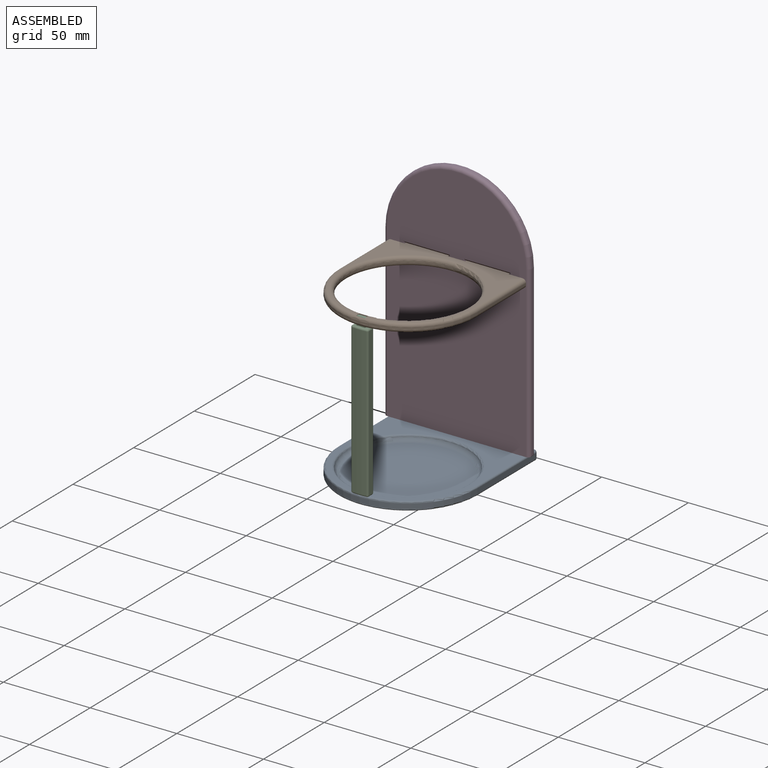
[diagram: assembled view]
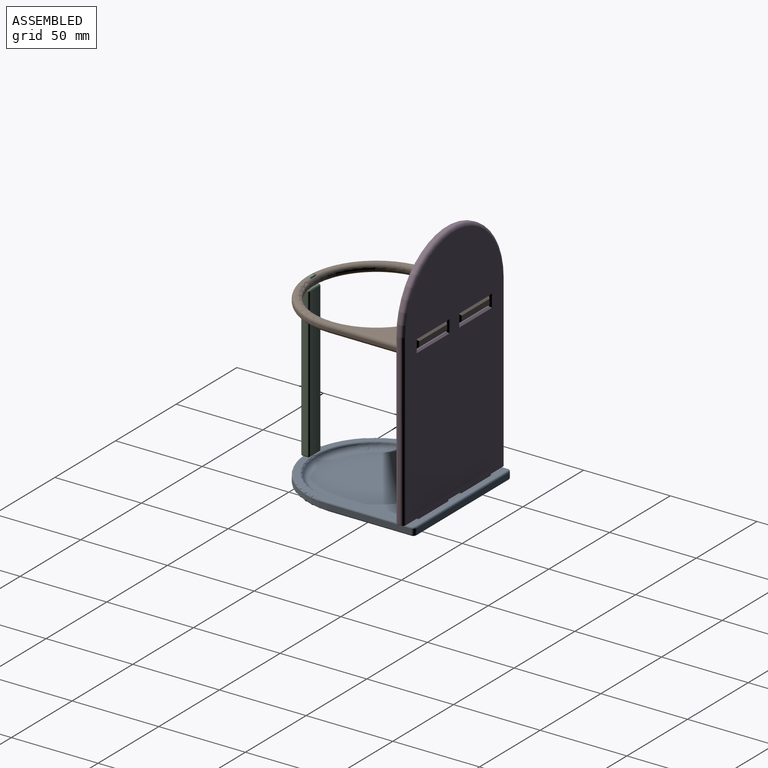
[diagram: assembled view, second angle]
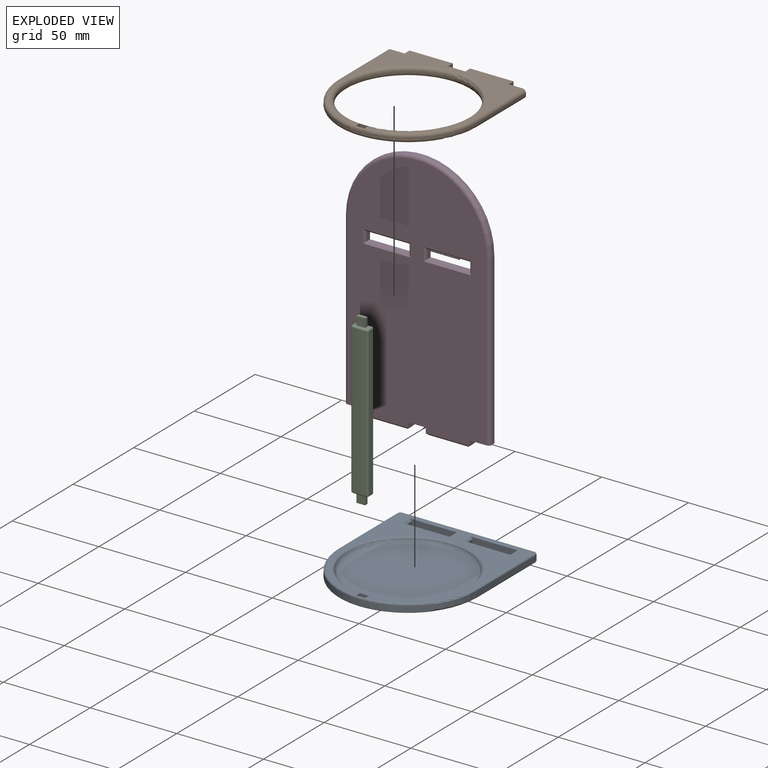
[diagram: exploded view]
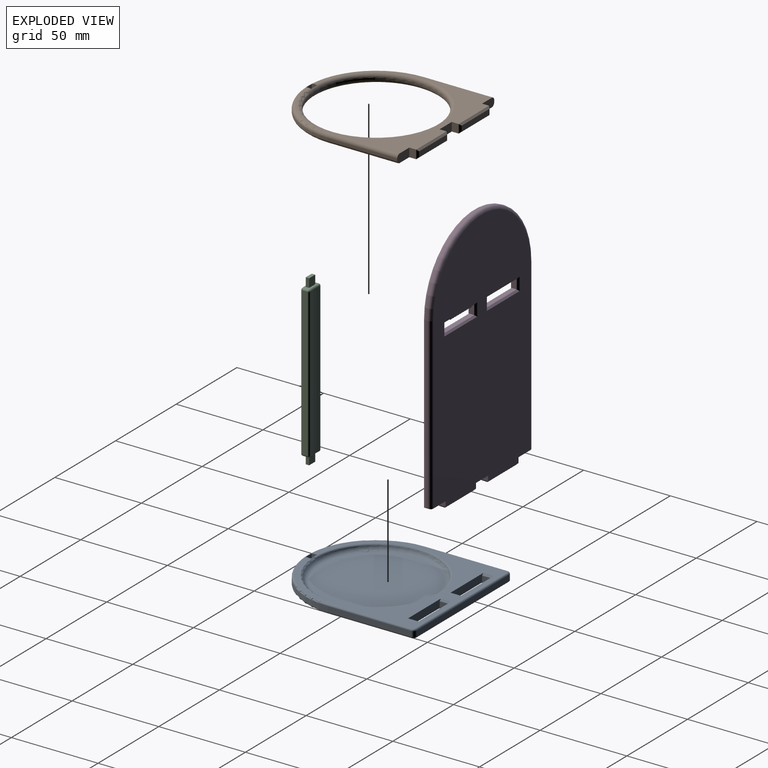
[diagram: exploded view, second angle]
ASSEMBLY  parts=4 mates=9
PART A: 47 faces, bbox 86.6x93.5x5 mm
  f0: plane 87.92x78mm, normal (0,0,1), area 1829.1mm2, adj f7,f9,f11,f13,f15,f16,f17,f28
  f1: plane 87.92x78mm, normal (0,0,-1), area 5831.9mm2, adj f15,f16,f17,f22,f23,f24,f25,f26
  f2: plane 48x3mm, normal (-1,0,0), area 144mm2, adj f3,f21,f23,f32
  f3: cylinder r=40mm len=80mm, axis (0,0,-1), area 377mm2, adj f2,f4,f22,f30
  f4: plane 48x3mm, normal (1,0,0), area 144mm2, adj f3,f20,f24,f28
  f5: plane 76x3mm, normal (0,1,0), area 228mm2, adj f20,f21,f27,f31
  f6: plane 64x64mm, normal (0,0,1), area 3217mm2, adj f19
  f7: plane 27x4.5mm, normal (0,1,0), area 113.5mm2, adj f0,f8,f10,f39,f44,f45
  f8: plane 6x3.5mm, normal (1,0,0), area 21mm2, adj f7,f9,f38,f44
  f9: plane 27x4.5mm, normal (0,-1,0), area 113.5mm2, adj f0,f8,f10,f40,f44,f45
  f10: plane 6x3.5mm, normal (-1,0,0), area 21mm2, adj f7,f9,f41,f45
  f11: plane 27x4.5mm, normal (0,1,0), area 113.5mm2, adj f0,f12,f14,f35,f42,f43
  f12: plane 6x3.5mm, normal (1,0,0), area 21mm2, adj f11,f13,f37,f42
  f13: plane 27x4.5mm, normal (0,-1,0), area 113.5mm2, adj f0,f12,f14,f36,f42,f43
  f14: plane 6x3.5mm, normal (-1,0,0), area 21mm2, adj f11,f13,f34,f43
  f15: plane 5x3mm, normal (-1,0,0), area 15mm2, adj f0,f1,f16,f18,f22,f30
  f16: plane 5x5mm, normal (0,-1,0), area 25mm2, adj f0,f1,f15,f17
  f17: plane 5x3mm, normal (1,0,0), area 15mm2, adj f0,f1,f16,f18,f22,f30
  f18: plane 5x5mm, normal (0,1,0), area 25mm2, adj f15,f17,f22,f30
  f19: torus R=32mm, axis (0,0,1), area 837.5mm2, adj f6,f46
  f20: cylinder r=2mm len=3mm, axis (0,0,1), area 9.4mm2, adj f4,f5,f26,f29
  f21: cylinder r=2mm len=3mm, axis (0,0,-1), area 9.4mm2, adj f2,f5,f25,f33
  f22: torus R=39mm, axis (0,0,1), area 195.5mm2, adj f1,f3,f15,f17,f18,f23,f24
  f23: cylinder r=1mm len=48mm, axis (0,-1,0), area 75.4mm2, adj f1,f2,f22,f25
  f24: cylinder r=1mm len=48mm, axis (0,1,0), area 75.4mm2, adj f1,f4,f22,f26
  f25: torus R=1mm, axis (0,0,1), area 4mm2, adj f1,f21,f23,f27
  f26: torus R=1mm, axis (0,0,1), area 4mm2, adj f1,f20,f24,f27
  f27: cylinder r=1mm len=76mm, axis (-1,0,0), area 119.4mm2, adj f1,f5,f25,f26
  f28: cylinder r=1mm len=48mm, axis (0,-1,0), area 75.4mm2, adj f0,f4,f29,f30
  f29: torus R=1mm, axis (0,0,1), area 4mm2, adj f0,f20,f28,f31
  f30: torus R=39mm, axis (0,0,1), area 195.5mm2, adj f0,f3,f15,f17,f18,f28,f32
  f31: cylinder r=1mm len=76mm, axis (1,0,0), area 119.4mm2, adj f0,f5,f29,f33
  f32: cylinder r=1mm len=48mm, axis (0,1,0), area 75.4mm2, adj f0,f2,f30,f33
  f33: torus R=1mm, axis (0,0,1), area 4mm2, adj f0,f21,f31,f32
  f34: plane 7x0.5mm, normal (-0.71,0,-0.71), area 4.6mm2, adj f1,f14,f35,f36
  f35: plane 26x0.5mm, normal (0,0.71,-0.71), area 18mm2, adj f1,f11,f34,f37
  f36: plane 26x0.5mm, normal (0,-0.71,-0.71), area 18mm2, adj f1,f13,f34,f37
  f37: plane 7x0.5mm, normal (0.71,0,-0.71), area 4.6mm2, adj f1,f12,f35,f36
  f38: plane 7x0.5mm, normal (0.71,0,-0.71), area 4.6mm2, adj f1,f8,f39,f40
  f39: plane 26x0.5mm, normal (0,0.71,-0.71), area 18mm2, adj f1,f7,f38,f41
  f40: plane 26x0.5mm, normal (0,-0.71,-0.71), area 18mm2, adj f1,f9,f38,f41
  f41: plane 7x0.5mm, normal (-0.71,0,-0.71), area 4.6mm2, adj f1,f10,f39,f40
  f42: plane 6x1mm, normal (0.71,0,0.71), area 8.5mm2, adj f0,f11,f12,f13
  f43: plane 6x1mm, normal (-0.71,0,0.71), area 8.5mm2, adj f0,f11,f13,f14
  f44: plane 6x1mm, normal (0.71,0,0.71), area 8.5mm2, adj f0,f7,f8,f9
  f45: plane 6x1mm, normal (-0.71,0,0.71), area 8.5mm2, adj f0,f7,f9,f10
  f46: torus R=35.87mm, axis (0,0,1), area 292.4mm2, adj f0,f19
PART B: 35 faces, bbox 86.6x88.3x5 mm
  f0: plane 10x5mm, normal (0,1,0), area 50mm2, adj f7,f8,f9,f13
  f1: plane 10x5mm, normal (0,1,0), area 48.3mm2, adj f3,f7,f8,f11,f29,f32
  f2: plane 10x5mm, normal (0,1,0), area 48.3mm2, adj f5,f7,f8,f14,f27,f30
  f3: plane 40x1mm, normal (-1,0,0), area 40mm2, adj f1,f4,f29,f32
  f4: cylinder r=40mm len=80mm, axis (0,0,-1), area 125.7mm2, adj f3,f5,f28,f31
  f5: plane 40x1mm, normal (1,0,0), area 40mm2, adj f2,f4,f27,f30
  f6: cylinder r=35mm len=70mm, axis (0,0,-1), area 219.9mm2, adj f33,f34
  f7: plane 81.92x76mm, normal (0,0,1), area 1202.4mm2, adj f0,f1,f2,f9,f11,f13,f14,f15
  f8: plane 81.92x76mm, normal (0,0,-1), area 1202.4mm2, adj f0,f1,f2,f9,f11,f13,f14,f15
  f9: plane 5x4mm, normal (1,0,0), area 20mm2, adj f0,f7,f8,f25
  f10: plane 23x3mm, normal (0,1,0), area 69mm2, adj f23,f24,f25,f26
  f11: plane 5x4mm, normal (-1,0,0), area 20mm2, adj f1,f7,f8,f24
  f12: plane 23x3mm, normal (0,1,0), area 69mm2, adj f19,f20,f21,f22
  f13: plane 5x4mm, normal (-1,0,0), area 20mm2, adj f0,f7,f8,f21
  f14: plane 5x4mm, normal (1,0,0), area 20mm2, adj f2,f7,f8,f20
  f15: plane 5.01x3.01mm, normal (-1,0,0), area 14.6mm2, adj f7,f8,f16,f18,f28,f31,f33,f34
  f16: plane 5x4.56mm, normal (0,-1,0), area 22.5mm2, adj f15,f17,f33,f34
  f17: plane 5.01x3.01mm, normal (1,0,0), area 14.6mm2, adj f7,f8,f16,f18,f28,f31,f33,f34
  f18: plane 5x4.47mm, normal (0,1,0), area 22.2mm2, adj f15,f17,f28,f31
  f19: plane 25x1mm, normal (0,0.71,-0.71), area 33.9mm2, adj f8,f12,f20,f21
  f20: plane 5x1mm, normal (0.71,0.71,0), area 5.7mm2, adj f12,f14,f19,f22
  f21: plane 5x1mm, normal (-0.71,0.71,0), area 5.7mm2, adj f12,f13,f19,f22
  f22: plane 25x1mm, normal (0,0.71,0.71), area 33.9mm2, adj f7,f12,f20,f21
  f23: plane 25x1mm, normal (0,0.71,0.71), area 33.9mm2, adj f7,f10,f24,f25
  f24: plane 5x1mm, normal (-0.71,0.71,0), area 5.7mm2, adj f10,f11,f23,f26
  f25: plane 5x1mm, normal (0.71,0.71,0), area 5.7mm2, adj f9,f10,f23,f26
  f26: plane 25x1mm, normal (0,0.71,-0.71), area 33.9mm2, adj f8,f10,f24,f25
  f27: cylinder r=2mm len=40mm, axis (0,-1,0), area 125.7mm2, adj f2,f5,f7,f28
  f28: torus R=38mm, axis (0,0,1), area 382.2mm2, adj f4,f7,f15,f17,f18,f27,f29
  f29: cylinder r=2mm len=40mm, axis (0,1,0), area 125.7mm2, adj f1,f3,f7,f28
  f30: cylinder r=2mm len=40mm, axis (0,1,0), area 125.7mm2, adj f2,f5,f8,f31
  f31: torus R=38mm, axis (0,0,1), area 382.2mm2, adj f4,f8,f15,f17,f18,f30,f32
  f32: cylinder r=2mm len=40mm, axis (0,-1,0), area 125.7mm2, adj f1,f3,f8,f31
  f33: torus R=37mm, axis (0,0,1), area 700.1mm2, adj f6,f8,f15,f16,f17
  f34: torus R=37mm, axis (0,0,1), area 700.1mm2, adj f6,f7,f15,f16,f17
PART C: 36 faces, bbox 10x5.4x97.5 mm
  f0: plane 8x3.22mm, normal (0,0,1), area 14mm2, adj f6,f7,f8,f9,f20,f23,f24,f27
  f1: plane 85.5x3.02mm, normal (-1,0,0), area 258mm2, adj f16,f19,f23,f31
  f2: cylinder r=40mm len=85.5mm, axis (0,0,-1), area 702.8mm2, adj f16,f17,f27,f28
  f3: plane 85.5x3.02mm, normal (1,0,0), area 258mm2, adj f17,f18,f24,f32
  f4: cylinder r=35mm len=85.5mm, axis (0,0,-1), area 666.4mm2, adj f18,f19,f20,f35
  f5: plane 8x3.22mm, normal (0,0,-1), area 14mm2, adj f11,f12,f13,f14,f28,f31,f32,f35
  f6: plane 5x2mm, normal (1,0,0), area 10mm2, adj f0,f7,f9,f10
  f7: plane 5x5mm, normal (0,1,0), area 25mm2, adj f0,f6,f8,f10
  f8: plane 5x2mm, normal (-1,0,0), area 10mm2, adj f0,f7,f9,f10
  f9: plane 5x5mm, normal (0,-1,0), area 25mm2, adj f0,f6,f8,f10
  f10: plane 5x2mm, normal (0,0,1), area 10mm2, adj f6,f7,f8,f9
  f11: plane 5x2mm, normal (1,0,0), area 10mm2, adj f5,f12,f14,f15
  f12: plane 5x5mm, normal (0,-1,0), area 25mm2, adj f5,f11,f13,f15
  f13: plane 5x2mm, normal (-1,0,0), area 10mm2, adj f5,f12,f14,f15
  f14: plane 5x5mm, normal (0,1,0), area 25mm2, adj f5,f11,f13,f15
  f15: plane 5x2mm, normal (0,0,-1), area 10mm2, adj f11,f12,f13,f14
  f16: cylinder r=1mm len=85.5mm, axis (0,0,-1), area 125.5mm2, adj f1,f2,f25,f29
  f17: cylinder r=1mm len=85.5mm, axis (0,0,-1), area 125.5mm2, adj f2,f3,f26,f30
  f18: cylinder r=1mm len=85.5mm, axis (0,0,-1), area 143.8mm2, adj f3,f4,f22,f34
  f19: cylinder r=1mm len=85.5mm, axis (0,0,-1), area 143.8mm2, adj f1,f4,f21,f33
  f20: torus R=36mm, axis (0,0,1), area 12.4mm2, adj f0,f4,f21,f22
  f21: sphere r=1mm, area 1.7mm2, adj f19,f20,f23
  f22: sphere r=1mm, area 1.7mm2, adj f18,f20,f24
  f23: cylinder r=1mm len=3.02mm, axis (0,1,0), area 4.7mm2, adj f0,f1,f21,f25
  f24: cylinder r=1mm len=3.02mm, axis (0,-1,0), area 4.7mm2, adj f0,f3,f22,f26
  f25: sphere r=1mm, area 1.5mm2, adj f16,f23,f27
  f26: sphere r=1mm, area 1.5mm2, adj f17,f24,f27
  f27: torus R=39mm, axis (0,0,1), area 12.8mm2, adj f0,f2,f25,f26
  f28: torus R=39mm, axis (0,0,1), area 12.8mm2, adj f2,f5,f29,f30
  f29: sphere r=1mm, area 1.5mm2, adj f16,f28,f31
  f30: sphere r=1mm, area 1.5mm2, adj f17,f28,f32
  f31: cylinder r=1mm len=3.02mm, axis (0,-1,0), area 4.7mm2, adj f1,f5,f29,f33
  f32: cylinder r=1mm len=3.02mm, axis (0,1,0), area 4.7mm2, adj f3,f5,f30,f34
  f33: sphere r=1mm, area 1.7mm2, adj f19,f31,f35
  f34: sphere r=1mm, area 1.7mm2, adj f18,f32,f35
  f35: torus R=36mm, axis (0,0,1), area 12.4mm2, adj f4,f5,f33,f34
PART D: 54 faces, bbox 90.9x5x147.5 mm
  f0: plane 10x5mm, normal (0,0,-1), area 50mm2, adj f2,f3,f18,f19
  f1: plane 11.5x5mm, normal (0,0,-1), area 56.9mm2, adj f2,f3,f16,f46,f48,f51
  f2: plane 141x80mm, normal (0,-1,0), area 10098.3mm2, adj f0,f1,f5,f16,f18,f19,f21,f27
  f3: plane 141x80mm, normal (0,1,0), area 10098.3mm2, adj f0,f1,f5,f16,f18,f19,f21,f26
  f4: plane 97.5x1mm, normal (-1,0,0), area 97.5mm2, adj f7,f46,f48,f51
  f5: plane 11.5x5mm, normal (0,0,-1), area 56.9mm2, adj f2,f3,f21,f47,f50,f53
  f6: plane 97.5x1mm, normal (1,0,0), area 97.5mm2, adj f7,f47,f50,f53
  f7: cylinder r=42mm len=84mm, axis (0,1,0), area 131.9mm2, adj f4,f6,f49,f52
  f8: plane 25x3mm, normal (0,0,-1), area 75mm2, adj f9,f11,f35,f41
  f9: plane 5.5x3mm, normal (1,0,0), area 16.5mm2, adj f8,f10,f34,f39
  f10: plane 25x3mm, normal (0,0,1), area 75mm2, adj f9,f11,f36,f38
  f11: plane 5.5x3mm, normal (-1,0,0), area 16.5mm2, adj f8,f10,f37,f40
  f12: plane 5.5x3mm, normal (-1,0,0), area 16.5mm2, adj f13,f15,f33,f42
  f13: plane 25x3mm, normal (0,0,-1), area 75mm2, adj f12,f14,f31,f43
  f14: plane 5.5x3mm, normal (1,0,0), area 16.5mm2, adj f13,f15,f30,f45
  f15: plane 25x3mm, normal (0,0,1), area 75mm2, adj f12,f14,f32,f44
  f16: plane 5x3mm, normal (-1,0,0), area 15mm2, adj f1,f2,f3,f24
  f17: plane 23x3mm, normal (0,0,-1), area 69mm2, adj f24,f25,f26,f27
  f18: plane 5x3mm, normal (1,0,0), area 15mm2, adj f0,f2,f3,f25
  f19: plane 5x3mm, normal (-1,0,0), area 15mm2, adj f0,f2,f3,f23
  f20: plane 23x3mm, normal (0,0,-1), area 69mm2, adj f22,f23,f28,f29
  f21: plane 5x3mm, normal (1,0,0), area 15mm2, adj f2,f3,f5,f22
  f22: plane 5x1mm, normal (0.71,0,-0.71), area 5.7mm2, adj f20,f21,f28,f29
  f23: plane 5x1mm, normal (-0.71,0,-0.71), area 5.7mm2, adj f19,f20,f28,f29
  f24: plane 5x1mm, normal (-0.71,0,-0.71), area 5.7mm2, adj f16,f17,f26,f27
  f25: plane 5x1mm, normal (0.71,0,-0.71), area 5.7mm2, adj f17,f18,f26,f27
  f26: plane 25x1mm, normal (0,0.71,-0.71), area 33.9mm2, adj f3,f17,f24,f25
  f27: plane 25x1mm, normal (0,-0.71,-0.71), area 33.9mm2, adj f2,f17,f24,f25
  f28: plane 25x1mm, normal (0,0.71,-0.71), area 33.9mm2, adj f3,f20,f22,f23
  f29: plane 25x1mm, normal (0,-0.71,-0.71), area 33.9mm2, adj f2,f20,f22,f23
  f30: plane 7.5x1mm, normal (0.71,-0.71,0), area 9.2mm2, adj f2,f14,f31,f32
  f31: plane 27x1mm, normal (0,-0.71,-0.71), area 36.8mm2, adj f2,f13,f30,f33
  f32: plane 27x1mm, normal (0,-0.71,0.71), area 36.8mm2, adj f2,f15,f30,f33
  f33: plane 7.5x1mm, normal (-0.71,-0.71,0), area 9.2mm2, adj f2,f12,f31,f32
  f34: plane 7.5x1mm, normal (0.71,-0.71,0), area 9.2mm2, adj f2,f9,f35,f36
  f35: plane 27x1mm, normal (0,-0.71,-0.71), area 36.8mm2, adj f2,f8,f34,f37
  f36: plane 27x1mm, normal (0,-0.71,0.71), area 36.8mm2, adj f2,f10,f34,f37
  f37: plane 7.5x1mm, normal (-0.71,-0.71,0), area 9.2mm2, adj f2,f11,f35,f36
  f38: plane 27x1mm, normal (0,0.71,0.71), area 36.8mm2, adj f3,f10,f39,f40
  f39: plane 7.5x1mm, normal (0.71,0.71,0), area 9.2mm2, adj f3,f9,f38,f41
  f40: plane 7.5x1mm, normal (-0.71,0.71,0), area 9.2mm2, adj f3,f11,f38,f41
  f41: plane 27x1mm, normal (0,0.71,-0.71), area 36.8mm2, adj f3,f8,f39,f40
  f42: plane 7.5x1mm, normal (-0.71,0.71,0), area 9.2mm2, adj f3,f12,f43,f44
  f43: plane 27x1mm, normal (0,0.71,-0.71), area 36.8mm2, adj f3,f13,f42,f45
  f44: plane 27x1mm, normal (0,0.71,0.71), area 36.8mm2, adj f3,f15,f42,f45
  f45: plane 7.5x1mm, normal (0.71,0.71,0), area 9.2mm2, adj f3,f14,f43,f44
  f46: cylinder r=0.5mm len=3.65mm, axis (0,-1,0), area 1.9mm2, adj f1,f4,f48,f51
  f47: cylinder r=0.5mm len=3.65mm, axis (0,1,0), area 1.9mm2, adj f5,f6,f50,f53
  f48: cylinder r=2mm len=98mm, axis (0,0,1), area 307.6mm2, adj f1,f2,f4,f46,f49
  f49: torus R=40mm, axis (0,-1,0), area 407.4mm2, adj f2,f7,f48,f50
  f50: cylinder r=2mm len=98mm, axis (0,0,-1), area 307.6mm2, adj f2,f5,f6,f47,f49
  f51: cylinder r=2mm len=98mm, axis (0,0,-1), area 307.6mm2, adj f1,f3,f4,f46,f52
  f52: torus R=40mm, axis (0,-1,0), area 407.4mm2, adj f3,f7,f51,f53
  f53: cylinder r=2mm len=98mm, axis (0,0,1), area 307.6mm2, adj f3,f5,f6,f47,f52
PLACE A t=(6.4,0,3.86)mm fixed
PLACE B t=(6.4,0,96.61)mm
PLACE C t=(6.4,-40.5,8.86)mm
PLACE D t=(6.4,5,8.86)mm
MATE planar C.f5 <-> A.f3  axis (0,0,-1) through (3.9,-77,8.86)mm
MATE planar A.f11 <-> D.f2  axis (0,1,0) through (-11.1,0,6.63)mm
MATE planar A.f14 <-> D.f18  axis (-1,0,0) through (1.4,3,6.11)mm
MATE planar B.f17 <-> C.f8  axis (1,0,0) through (3.9,-77.49,99.11)mm
MATE planar B.f0 <-> D.f2  axis (0,1,0) through (6.4,0,99.11)mm
MATE planar D.f12 <-> B.f9  axis (-1,0,0) through (1.4,2.5,98.86)mm
MATE planar B.f18 <-> C.f9  axis (0,1,0) through (6.4,-79,99.11)mm
MATE planar D.f13 <-> B.f7  axis (0,0,-1) through (-11.1,2.5,101.61)mm
MATE planar A.f3 <-> D.f0  axis (0,0,1) through (6.4,-40,8.86)mm
